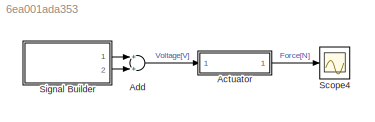
MODEL slx_6ea001ada353
KIND model
CONFIG AbsTol = auto
CONFIG FixedStep = 0.001
CONFIG MaxStep = 0.
CONFIG MinStep = auto
CONFIG RelTol = 1e-3
CONFIG SampleTimeConstraint = Unconstrained
CONFIG Solver = ode5
CONFIG SolverMode = Auto
CONFIG SolverName = ode5
CONFIG StartTime = 0.0
CONFIG StopTime = 10
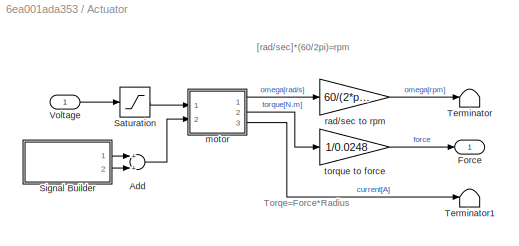
BLOCK [SubSystem] Actuator
  Ports = [1, 1]
  RequestExecContextInheritance = off
BLOCK [Sum] Actuator/Add
  InputSameDT = off
  OutDataTypeStr = Inherit: Inherit via internal rule
  Ports = [2, 1]
  SaturateOnIntegerOverflow = off
BLOCK [Outport] Actuator/Force
  IconDisplay = Port number
BLOCK [Saturate] Actuator/Saturation
  InputPortMap = u0
  LowerLimit = -25
  Ports = [1, 1]
  UpperLimit = 25
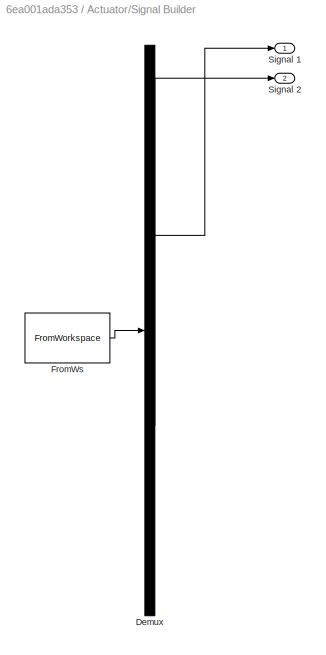
BLOCK [SubSystem] Actuator/Signal Builder
  ClipboardFcn = sigbuilder_block('clipboard');
  CloseFcn = sigbuilder_block('close');
  ContinueFcn = sigbuilder_block('continue');
  CopyFcn = sigbuilder_block('copy');
  DeleteFcn = sigbuilder_block('delete');
  LoadFcn = sigbuilder_block('load');
  MaskHideContents = on
  ModelCloseFcn = sigbuilder_block('modelClose');
  NameChangeFcn = sigbuilder_block('namechange');
  OpenFcn = sigbuilder_block('open',[437.6 199.2 550.4 400 ]);
  PauseFcn = sigbuilder_block('pause');
  Ports = [0, 2]
  PreSaveFcn = sigbuilder_block('preSave');
  RequestExecContextInheritance = off
  StartFcn = sigbuilder_block('start');
  StopFcn = sigbuilder_block('stop');
  Tag = STV Subsys
BLOCK [Demux] Actuator/Signal Builder/Demux
  Outputs = 2
  Ports = [1, 2]
  Tag = STV Demux
BLOCK [FromWorkspace] Actuator/Signal Builder/FromWs
  SampleTime = 0
  Tag = STV FromWs
  VariableName = tuvar
  ZeroCross = on
BLOCK [Outport] Actuator/Signal Builder/Signal 1
  IconDisplay = Port number
  Tag = STV Outport
BLOCK [Outport] Actuator/Signal Builder/Signal 2
  IconDisplay = Port number
  Port = 2
  Tag = STV Outport
BLOCK [Terminator] Actuator/Terminator
BLOCK [Terminator] Actuator/Terminator1
BLOCK [Inport] Actuator/Voltage
  IconDisplay = Port number
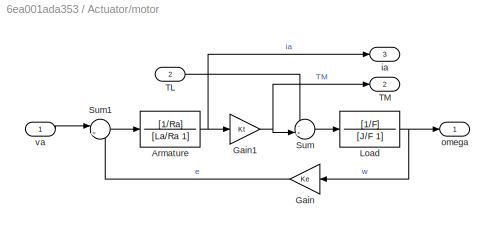
BLOCK [SubSystem] Actuator/motor
  Ports = [2, 3]
  RequestExecContextInheritance = off
BLOCK [TransferFcn] Actuator/motor/Armature
  Denominator = [La/Ra 1]
  Numerator = [1/Ra]
BLOCK [Gain] Actuator/motor/Gain
  Gain = Ke
  OutDataTypeStr = Inherit: Inherit via internal rule
  ParamDataTypeStr = Inherit: Inherit via internal rule
  SaturateOnIntegerOverflow = off
BLOCK [Gain] Actuator/motor/Gain1
  Gain = Kt
  OutDataTypeStr = Inherit: Inherit via internal rule
  ParamDataTypeStr = Inherit: Inherit via internal rule
  SaturateOnIntegerOverflow = off
BLOCK [TransferFcn] Actuator/motor/Load
  Denominator = [J/F 1]
  Numerator = [1/F]
BLOCK [Sum] Actuator/motor/Sum
  IconShape = round
  InputSameDT = off
  Inputs = -+|
  OutDataTypeStr = Inherit: Inherit via internal rule
  Ports = [2, 1]
  SaturateOnIntegerOverflow = off
BLOCK [Sum] Actuator/motor/Sum1
  IconShape = round
  InputSameDT = off
  Inputs = |+-
  OutDataTypeStr = Inherit: Inherit via internal rule
  Ports = [2, 1]
  SaturateOnIntegerOverflow = off
BLOCK [Inport] Actuator/motor/TL
  IconDisplay = Port number
  Port = 2
BLOCK [Outport] Actuator/motor/TM
  IconDisplay = Port number
  Port = 2
BLOCK [Outport] Actuator/motor/ia
  IconDisplay = Port number
  Port = 3
BLOCK [Outport] Actuator/motor/omega
  IconDisplay = Port number
BLOCK [Inport] Actuator/motor/va
  IconDisplay = Port number
BLOCK [Gain] Actuator/rad//sec to rpm
  Gain = 60/(2*pi)
  OutDataTypeStr = Inherit: Inherit via internal rule
  ParamDataTypeStr = Inherit: Inherit via internal rule
  SaturateOnIntegerOverflow = off
BLOCK [Gain] Actuator/torque to force
  Gain = 1/0.0248
  OutDataTypeStr = Inherit: Inherit via internal rule
  ParamDataTypeStr = Inherit: Inherit via internal rule
  SaturateOnIntegerOverflow = off
BLOCK [Sum] Add
  InputSameDT = off
  OutDataTypeStr = Inherit: Inherit via internal rule
  Ports = [2, 1]
  SaturateOnIntegerOverflow = off
BLOCK [Scope] Scope4
  Floating = off
  NumInputPorts = 1
  Ports = [1]
  SaveName = ScopeData4
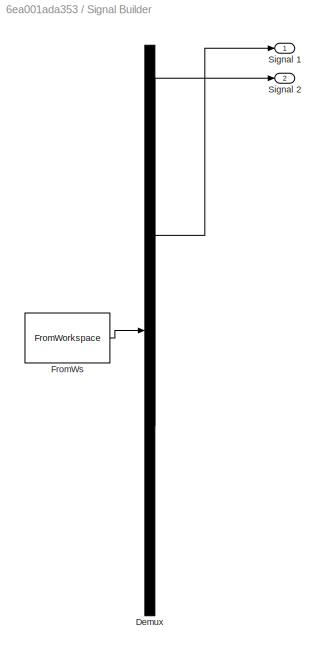
BLOCK [SubSystem] Signal Builder
  ClipboardFcn = sigbuilder_block('clipboard');
  CloseFcn = sigbuilder_block('close');
  ContinueFcn = sigbuilder_block('continue');
  CopyFcn = sigbuilder_block('copy');
  DeleteFcn = sigbuilder_block('delete');
  LoadFcn = sigbuilder_block('load');
  MaskHideContents = on
  ModelCloseFcn = sigbuilder_block('modelClose');
  NameChangeFcn = sigbuilder_block('namechange');
  OpenFcn = sigbuilder_block('open',[437.6 199.2 550.4 400 ]);
  PauseFcn = sigbuilder_block('pause');
  Ports = [0, 2]
  PreSaveFcn = sigbuilder_block('preSave');
  RequestExecContextInheritance = off
  StartFcn = sigbuilder_block('start');
  StopFcn = sigbuilder_block('stop');
  Tag = STV Subsys
BLOCK [Demux] Signal Builder/Demux
  Outputs = 2
  Ports = [1, 2]
  Tag = STV Demux
BLOCK [FromWorkspace] Signal Builder/FromWs
  SampleTime = 0
  Tag = STV FromWs
  VariableName = tuvar
  ZeroCross = on
BLOCK [Outport] Signal Builder/Signal 1
  IconDisplay = Port number
  Tag = STV Outport
BLOCK [Outport] Signal Builder/Signal 2
  IconDisplay = Port number
  Port = 2
  Tag = STV Outport
ANNOTATION Actuator: Torqe=Force*Radius
ANNOTATION Actuator: [rad/sec]*(60/2pi)=rpm
LINE Actuator/Add:1 -> Actuator/motor:2
LINE Actuator/Saturation:1 -> Actuator/motor:1
LINE Actuator/Signal Builder:1 -> Actuator/Add:1
LINE Actuator/Signal Builder:2 -> Actuator/Add:2
LINE Actuator/Voltage:1 -> Actuator/Saturation:1
NET Actuator/motor/Armature:1 -> Actuator/motor/Gain1:1, Actuator/motor/ia:1
NET Actuator/motor/Gain1:1 -> Actuator/motor/Sum:2, Actuator/motor/TM:1
LINE Actuator/motor/Gain:1 -> Actuator/motor/Sum1:2
NET Actuator/motor/Load:1 -> Actuator/motor/Gain:1, Actuator/motor/omega:1
LINE Actuator/motor/Sum1:1 -> Actuator/motor/Armature:1
LINE Actuator/motor/Sum:1 -> Actuator/motor/Load:1
LINE Actuator/motor/TL:1 -> Actuator/motor/Sum:1
LINE Actuator/motor/va:1 -> Actuator/motor/Sum1:1
LINE Actuator/motor:1 -> Actuator/rad//sec to rpm:1
LINE Actuator/motor:2 -> Actuator/torque to force:1
LINE Actuator/motor:3 -> Actuator/Terminator1:1
LINE Actuator/rad//sec to rpm:1 -> Actuator/Terminator:1
LINE Actuator/torque to force:1 -> Actuator/Force:1
LINE Actuator:1 -> Scope4:1
LINE Add:1 -> Actuator:1
LINE Signal Builder:1 -> Add:1
LINE Signal Builder:2 -> Add:2
note: NET lines group one-source signal fan-out (src -> all destinations, sorted); 1:1 wires keep LINE
